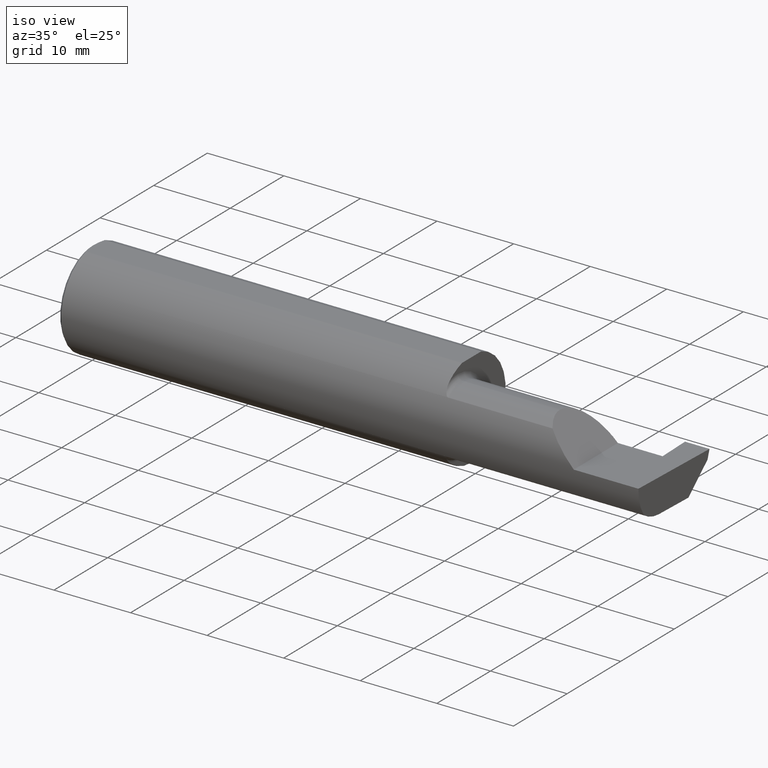
[diagram: clean part render]
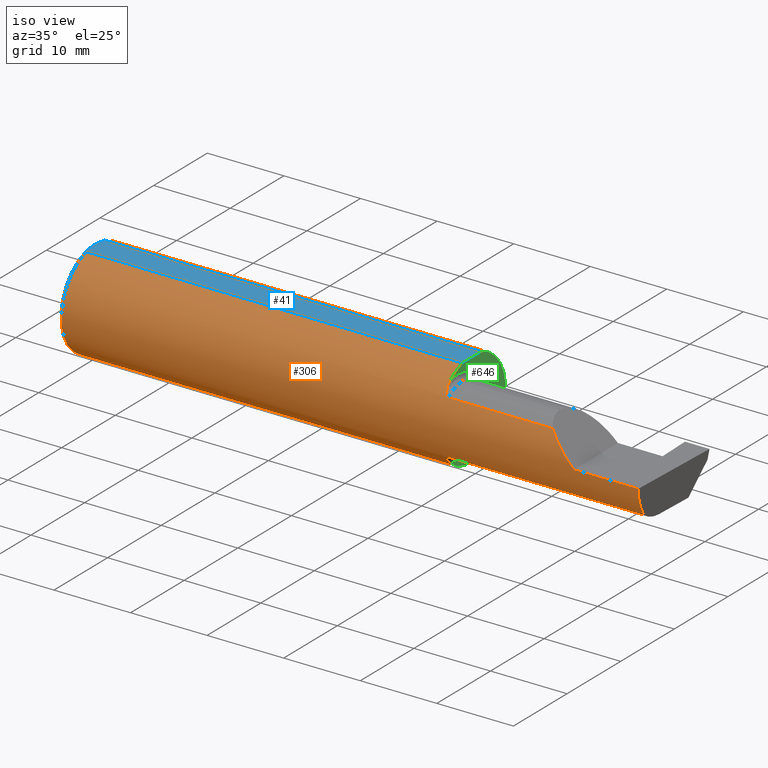
[diagram: same view with three faces highlighted in distinct colors, each labeled with its STEP entity id]
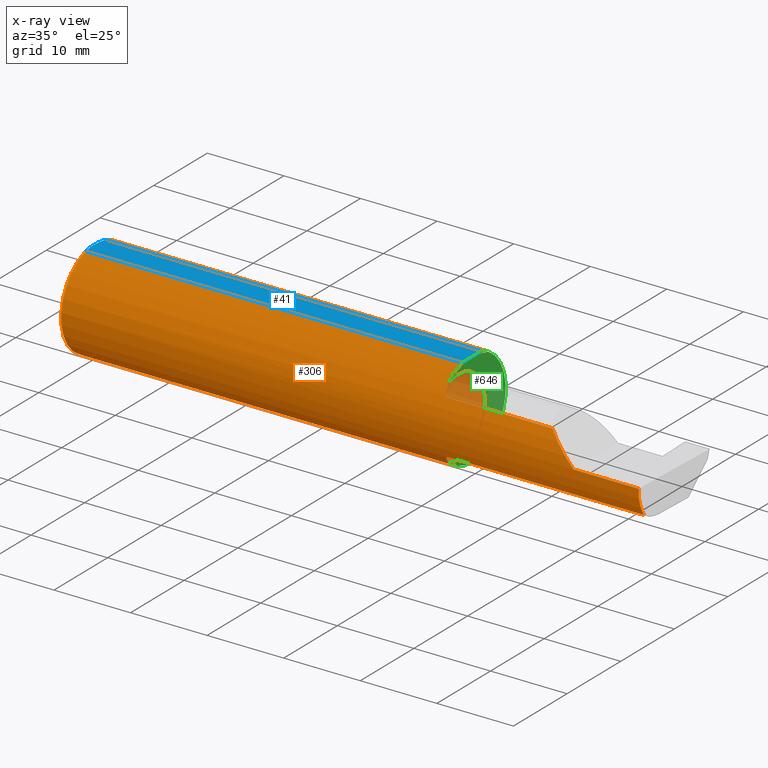
[diagram: x-ray of the same camera — body ghosted, the three highlighted faces saturated]
A machine part, iso view with three faces highlighted in distinct colors.
The next image is the same camera in x-ray (body ghosted, the three faces saturated) — at least one of them is partly hidden behind the body in this view.
Their STEP definitions:

[orange] entity #306 — the highlighted cylindrical surface (partial cylindrical patch) has radius 6.3462 mm, axis along (-1, -0, -0).
#6 = VECTOR ( 'NONE', #75, 39.37007874015748854 ) ;
#7 = EDGE_CURVE ( 'NONE', #76, #108, #496, .T. ) ;
#10 = CARTESIAN_POINT ( 'NONE',  ( 1.951849548162864156, -0.1805300287242674051, 0.1728462070311780896 ) ) ;
#13 = CARTESIAN_POINT ( 'NONE',  ( 2.980479240051444378, -0.2080850024789291652, -0.1382955322609665250 ) ) ;
#23 = FACE_OUTER_BOUND ( 'NONE', #72, .T. ) ;
#28 = EDGE_CURVE ( 'NONE', #205, #546, #428, .T. ) ;
#32 = AXIS2_PLACEMENT_3D ( 'NONE', #557, #299, #243 ) ;
#45 = ORIENTED_EDGE ( 'NONE', *, *, #322, .F. ) ;
#50 = CARTESIAN_POINT ( 'NONE',  ( 1.975000000000000089, -0.2080850024789292485, 0.1382955322609664972 ) ) ;
#51 = DIRECTION ( 'NONE',  ( 0.000000000000000000, 0.000000000000000000, 1.000000000000000000 ) ) ;
#62 = CARTESIAN_POINT ( 'NONE',  ( 1.950367168219774294, -0.1713400252854603845, 0.1819601557798505576 ) ) ;
#72 = EDGE_LOOP ( 'NONE', ( #292, #133, #174, #98, #192, #606, #569, #736, #45, #461, #586, #642, #478, #411 ) ) ;
#73 = CARTESIAN_POINT ( 'NONE',  ( 2.424500000000000099, -0.2080850024789291652, -0.1382955322609665250 ) ) ;
#75 = DIRECTION ( 'NONE',  ( 0.02616100201822768243, -0.0009135623211515312911, 0.9996573249755575929 ) ) ;
#76 = VERTEX_POINT ( 'NONE', #310 ) ;
#78 =( BOUNDED_CURVE ( )  B_SPLINE_CURVE ( 3, ( #267, #735, #449, #686 ),
 .UNSPECIFIED., .F., .T. ) 
 B_SPLINE_CURVE_WITH_KNOTS ( ( 4, 4 ),
 ( 4.712388980384689674, 5.298966915116346321 ),
 .UNSPECIFIED. ) 
 CURVE ( )  GEOMETRIC_REPRESENTATION_ITEM ( )  RATIONAL_B_SPLINE_CURVE ( ( 1.000000000000000000, 0.9715321379117538569, 0.9715321379117538569, 1.000000000000000000 ) ) 
 REPRESENTATION_ITEM ( '' )  );
#79 = CARTESIAN_POINT ( 'NONE',  ( 1.964302603425052585, -0.2041009206016214661, -0.1441313430770040371 ) ) ;
#86 = CARTESIAN_POINT ( 'NONE',  ( 1.950000000000000400, -0.1716188362992556171, -0.1820560320165480195 ) ) ;
#87 = AXIS2_PLACEMENT_3D ( 'NONE', #350, #653, #278 ) ;
#98 = ORIENTED_EDGE ( 'NONE', *, *, #547, .F. ) ;
#105 = CARTESIAN_POINT ( 'NONE',  ( 2.982644377562602589, -0.2498499999999999610, 1.813681607540488003E-17 ) ) ;
#108 = VERTEX_POINT ( 'NONE', #176 ) ;
#120 = EDGE_CURVE ( 'NONE', #533, #205, #574, .T. ) ;
#122 = CARTESIAN_POINT ( 'NONE',  ( 1.950000000000000178, 0.000000000000000000, 0.000000000000000000 ) ) ;
#124 = VERTEX_POINT ( 'NONE', #180 ) ;
#126 = VECTOR ( 'NONE', #576, 39.37007874015748143 ) ;
#127 = CARTESIAN_POINT ( 'NONE',  ( 1.950000000000000178, -0.1616050818046604332, 0.1905487340154980169 ) ) ;
#131 = CARTESIAN_POINT ( 'NONE',  ( 1.973329956043143651, -0.2080850024798591991, 0.1382955322595675607 ) ) ;
#133 = ORIENTED_EDGE ( 'NONE', *, *, #697, .T. ) ;
#134 = EDGE_CURVE ( 'NONE', #698, #445, #672, .T. ) ;
#140 = LINE ( 'NONE', #755, #433 ) ;
#146 = DIRECTION ( 'NONE',  ( -1.000000000000000000, -0.000000000000000000, -0.000000000000000000 ) ) ;
#172 = CARTESIAN_POINT ( 'NONE',  ( 2.424500000000000099, -0.2080850024789291652, 0.1382955322609665250 ) ) ;
#174 = ORIENTED_EDGE ( 'NONE', *, *, #242, .T. ) ;
#176 = CARTESIAN_POINT ( 'NONE',  ( 1.950000000000000178, 0.06997856814768360634, 0.2398500000000000076 ) ) ;
#180 = CARTESIAN_POINT ( 'NONE',  ( 0.01499999999999998036, 0.06997856814768359246, 0.2398500000000000076 ) ) ;
#182 = VECTOR ( 'NONE', #663, 39.37007874015748143 ) ;
#191 = CARTESIAN_POINT ( 'NONE',  ( 0.01499999999999999944, -0.06997856814768359246, 0.2398500000000000076 ) ) ;
#192 = ORIENTED_EDGE ( 'NONE', *, *, #625, .F. ) ;
#195 = DIRECTION ( 'NONE',  ( 1.000000000000000000, 0.000000000000000000, 0.000000000000000000 ) ) ;
#205 = VERTEX_POINT ( 'NONE', #191 ) ;
#215 = DIRECTION ( 'NONE',  ( 0.000000000000000000, 0.000000000000000000, 1.000000000000000000 ) ) ;
#219 = CYLINDRICAL_SURFACE ( 'NONE', #87, 0.2498499999999999888 ) ;
#222 = CIRCLE ( 'NONE', #304, 0.2498499999999999888 ) ;
#225 = CARTESIAN_POINT ( 'NONE',  ( 1.967611663768900288, -0.2061921161193830399, -0.1411075319999376687 ) ) ;
#226 = VERTEX_POINT ( 'NONE', #327 ) ;
#242 = EDGE_CURVE ( 'NONE', #590, #321, #78, .T. ) ;
#243 = DIRECTION ( 'NONE',  ( 0.000000000000000000, 0.000000000000000000, -1.000000000000000000 ) ) ;
#248 =( BOUNDED_CURVE ( )  B_SPLINE_CURVE ( 3, ( #13, #708, #463, #767 ),
 .UNSPECIFIED., .F., .T. ) 
 B_SPLINE_CURVE_WITH_KNOTS ( ( 4, 4 ),
 ( 0.05713034791898994463, 0.6418805321922130824 ),
 .UNSPECIFIED. ) 
 CURVE ( )  GEOMETRIC_REPRESENTATION_ITEM ( )  RATIONAL_B_SPLINE_CURVE ( ( 1.000000000000000000, 0.9717080070095575062, 0.9717080070095575062, 1.000000000000000000 ) ) 
 REPRESENTATION_ITEM ( '' )  );
#252 = CARTESIAN_POINT ( 'NONE',  ( 1.964343523383979884, -0.2041337200786084161, 0.1440846171672512943 ) ) ;
#256 = LINE ( 'NONE', #73, #126 ) ;
#264 = VECTOR ( 'NONE', #296, 39.37007874015748143 ) ;
#267 = CARTESIAN_POINT ( 'NONE',  ( 2.650000000000000355, -0.2498499999999999610, 4.286263797015727350E-17 ) ) ;
#273 = CARTESIAN_POINT ( 'NONE',  ( 1.973318040126430084, -0.2080850024789291097, -0.1382955322609666915 ) ) ;
#278 = DIRECTION ( 'NONE',  ( 0.000000000000000000, 0.000000000000000000, 1.000000000000000000 ) ) ;
#283 = DIRECTION ( 'NONE',  ( -1.000000000000000000, -0.000000000000000000, -0.000000000000000000 ) ) ;
#286 = EDGE_CURVE ( 'NONE', #712, #698, #248, .T. ) ;
#289 = EDGE_CURVE ( 'NONE', #439, #76, #493, .T. ) ;
#292 = ORIENTED_EDGE ( 'NONE', *, *, #134, .T. ) ;
#296 = DIRECTION ( 'NONE',  ( 1.000000000000000000, 0.000000000000000000, 0.000000000000000000 ) ) ;
#299 = DIRECTION ( 'NONE',  ( 1.000000000000000000, 0.000000000000000000, 0.000000000000000000 ) ) ;
#303 = CIRCLE ( 'NONE', #738, 0.2498499999999999888 ) ;
#304 = AXIS2_PLACEMENT_3D ( 'NONE', #122, #195, #507 ) ;
#306 = ADVANCED_FACE ( 'NONE', ( #23 ), #219, .T. ) ;
#310 = CARTESIAN_POINT ( 'NONE',  ( 1.950000000000000178, -0.1616050818046604332, -0.1905487340154980169 ) ) ;
#321 = VERTEX_POINT ( 'NONE', #750 ) ;
#322 = EDGE_CURVE ( 'NONE', #124, #533, #303, .T. ) ;
#326 = CARTESIAN_POINT ( 'NONE',  ( 1.975000000000000089, -0.2080850024789292485, 0.1382955322609664972 ) ) ;
#327 = CARTESIAN_POINT ( 'NONE',  ( 1.950000000000000178, -0.1616050818046604332, 0.1905487340154980169 ) ) ;
#348 = EDGE_CURVE ( 'NONE', #108, #124, #140, .T. ) ;
#350 = CARTESIAN_POINT ( 'NONE',  ( 0.000000000000000000, 0.000000000000000000, 0.000000000000000000 ) ) ;
#352 = LINE ( 'NONE', #695, #471 ) ;
#360 = CARTESIAN_POINT ( 'NONE',  ( 1.975000000000000089, -0.2080850024789291375, -0.1382955322609665805 ) ) ;
#374 = CARTESIAN_POINT ( 'NONE',  ( 1.952968662030529323, -0.1849684355203378705, 0.1680843977756267815 ) ) ;
#383 = CARTESIAN_POINT ( 'NONE',  ( 2.650000000000000355, -0.2498499999999999610, 4.286263797015727350E-17 ) ) ;
#397 = CARTESIAN_POINT ( 'NONE',  ( 2.980479240051444378, -0.2080850024789291652, -0.1382955322609665250 ) ) ;
#400 = CARTESIAN_POINT ( 'NONE',  ( 2.982632426700501327, -0.2498495826666993214, -0.0004566631977791965049 ) ) ;
#401 = CARTESIAN_POINT ( 'NONE',  ( 1.958176740666625726, -0.1972027065478073327, -0.1535263573771913914 ) ) ;
#407 = CARTESIAN_POINT ( 'NONE',  ( 1.950000000000000178, -0.1616050818046604332, -0.1905487340154980169 ) ) ;
#410 = CARTESIAN_POINT ( 'NONE',  ( 1.971700027347579098, -0.2077785947292768443, -0.1387580622202825575 ) ) ;
#411 = ORIENTED_EDGE ( 'NONE', *, *, #286, .T. ) ;
#428 = LINE ( 'NONE', #714, #264 ) ;
#433 = VECTOR ( 'NONE', #700, 39.37007874015748143 ) ;
#439 = VERTEX_POINT ( 'NONE', #360 ) ;
#445 = VERTEX_POINT ( 'NONE', #105 ) ;
#449 = CARTESIAN_POINT ( 'NONE',  ( 2.552984868485333347, -0.2355204011147992438, 0.09701513151466735485 ) ) ;
#461 = ORIENTED_EDGE ( 'NONE', *, *, #348, .F. ) ;
#463 = CARTESIAN_POINT ( 'NONE',  ( 2.981341028891337785, -0.2497592792593336664, -0.04986346618389509572 ) ) ;
#471 = VECTOR ( 'NONE', #146, 39.37007874015748143 ) ;
#478 = ORIENTED_EDGE ( 'NONE', *, *, #657, .F. ) ;
#483 = CARTESIAN_POINT ( 'NONE',  ( 1.950000000000000178, -0.06997856814768374512, 0.2398500000000000076 ) ) ;
#493 = B_SPLINE_CURVE_WITH_KNOTS ( 'NONE', 3,
 ( #649, #273, #410, #696, #225, #79, #644, #401, #535, #522, #86, #407 ),
 .UNSPECIFIED., .F., .F.,
 ( 4, 2, 2, 2, 2, 4 ),
 ( 1.964491429041408350E-07, 0.0001260981470478295585, 0.0002519998449527549372, 0.0005038032407626189760, 0.001007410032382346837, 0.002014623615621808413 ),
 .UNSPECIFIED. ) ;
#496 = CIRCLE ( 'NONE', #32, 0.2498499999999999888 ) ;
#500 = CARTESIAN_POINT ( 'NONE',  ( 1.971718393013769388, -0.2077830475237242291, 0.1387513848711937614 ) ) ;
#507 = DIRECTION ( 'NONE',  ( 0.000000000000000000, 0.000000000000000000, -1.000000000000000000 ) ) ;
#522 = CARTESIAN_POINT ( 'NONE',  ( 1.951385488563270432, -0.1808287530430325862, -0.1728790649396287349 ) ) ;
#528 = CARTESIAN_POINT ( 'NONE',  ( 0.01499999999999999944, 0.000000000000000000, 0.000000000000000000 ) ) ;
#529 = VERTEX_POINT ( 'NONE', #50 ) ;
#533 = VERTEX_POINT ( 'NONE', #660 ) ;
#535 = CARTESIAN_POINT ( 'NONE',  ( 1.956147634408387459, -0.1932733126899460752, -0.1584637047788197417 ) ) ;
#546 = VERTEX_POINT ( 'NONE', #483 ) ;
#547 = EDGE_CURVE ( 'NONE', #529, #321, #719, .T. ) ;
#557 = CARTESIAN_POINT ( 'NONE',  ( 1.950000000000000178, 0.000000000000000000, 0.000000000000000000 ) ) ;
#567 = CARTESIAN_POINT ( 'NONE',  ( 1.950000000000000844, -0.1665641037263009827, 0.1863429692936361959 ) ) ;
#569 = ORIENTED_EDGE ( 'NONE', *, *, #28, .F. ) ;
#570 = EDGE_CURVE ( 'NONE', #546, #226, #222, .T. ) ;
#574 = CIRCLE ( 'NONE', #703, 0.2498499999999999888 ) ;
#576 = DIRECTION ( 'NONE',  ( -1.000000000000000000, -0.000000000000000000, -0.000000000000000000 ) ) ;
#577 = CARTESIAN_POINT ( 'NONE',  ( 2.977412177158956563, -0.2496672875357696664, -0.1999314649951114686 ) ) ;
#586 = ORIENTED_EDGE ( 'NONE', *, *, #7, .F. ) ;
#590 = VERTEX_POINT ( 'NONE', #383 ) ;
#606 = ORIENTED_EDGE ( 'NONE', *, *, #570, .F. ) ;
#617 = CARTESIAN_POINT ( 'NONE',  ( 1.962616400345755574, -0.2024684335577102978, 0.1464246884265637261 ) ) ;
#625 = EDGE_CURVE ( 'NONE', #226, #529, #797, .T. ) ;
#642 = ORIENTED_EDGE ( 'NONE', *, *, #289, .F. ) ;
#644 = CARTESIAN_POINT ( 'NONE',  ( 1.962579853086619197, -0.2024300470081735470, -0.1464774911482684405 ) ) ;
#649 = CARTESIAN_POINT ( 'NONE',  ( 1.975000000000000089, -0.2080850024789291375, -0.1382955322609665805 ) ) ;
#653 = DIRECTION ( 'NONE',  ( -1.000000000000000000, -0.000000000000000000, -0.000000000000000000 ) ) ;
#657 = EDGE_CURVE ( 'NONE', #712, #439, #256, .T. ) ;
#660 = CARTESIAN_POINT ( 'NONE',  ( 0.01499999999999999944, 0.000000000000000000, -0.2498499999999999888 ) ) ;
#663 = DIRECTION ( 'NONE',  ( 1.000000000000000000, 0.000000000000000000, 0.000000000000000000 ) ) ;
#666 = DIRECTION ( 'NONE',  ( -1.000000000000000000, -0.000000000000000000, -0.000000000000000000 ) ) ;
#672 = LINE ( 'NONE', #577, #6 ) ;
#673 = CARTESIAN_POINT ( 'NONE',  ( 1.958182335268384255, -0.1972192205116130859, 0.1535061413537208985 ) ) ;
#683 = CARTESIAN_POINT ( 'NONE',  ( 1.967647060162629025, -0.2062109266231182680, 0.1410799729252290857 ) ) ;
#686 = CARTESIAN_POINT ( 'NONE',  ( 2.511704467739034552, -0.2080850024789292485, 0.1382955322609664139 ) ) ;
#695 = CARTESIAN_POINT ( 'NONE',  ( 4.499279347985559139E-32, -0.2498499999999999610, 3.673940397442053459E-16 ) ) ;
#696 = CARTESIAN_POINT ( 'NONE',  ( 1.968863362722770738, -0.2068301641248770639, -0.1401678546132360259 ) ) ;
#697 = EDGE_CURVE ( 'NONE', #445, #590, #352, .T. ) ;
#698 = VERTEX_POINT ( 'NONE', #400 ) ;
#700 = DIRECTION ( 'NONE',  ( -1.000000000000000000, -0.000000000000000000, -0.000000000000000000 ) ) ;
#703 = AXIS2_PLACEMENT_3D ( 'NONE', #723, #666, #51 ) ;
#708 = CARTESIAN_POINT ( 'NONE',  ( 2.980602402804240381, -0.2354324170447263109, -0.09714751587401684874 ) ) ;
#712 = VERTEX_POINT ( 'NONE', #397 ) ;
#714 = CARTESIAN_POINT ( 'NONE',  ( 0.000000000000000000, -0.06997856814768359246, 0.2398500000000000076 ) ) ;
#719 = LINE ( 'NONE', #172, #182 ) ;
#723 = CARTESIAN_POINT ( 'NONE',  ( 0.01499999999999999944, 0.000000000000000000, 0.000000000000000000 ) ) ;
#731 = CARTESIAN_POINT ( 'NONE',  ( 1.956159563508734323, -0.1933019864360849549, 0.1584298865564831016 ) ) ;
#735 = CARTESIAN_POINT ( 'NONE',  ( 2.600434159100403875, -0.2498499999999999055, 0.04956584089959691769 ) ) ;
#736 = ORIENTED_EDGE ( 'NONE', *, *, #120, .F. ) ;
#737 = CARTESIAN_POINT ( 'NONE',  ( 1.968876997637614812, -0.2068363917296600352, 0.1401586554522230577 ) ) ;
#738 = AXIS2_PLACEMENT_3D ( 'NONE', #528, #283, #215 ) ;
#750 = CARTESIAN_POINT ( 'NONE',  ( 2.511704467739034552, -0.2080850024789292485, 0.1382955322609664139 ) ) ;
#755 = CARTESIAN_POINT ( 'NONE',  ( 0.000000000000000000, 0.06997856814768359246, 0.2398500000000000076 ) ) ;
#767 = CARTESIAN_POINT ( 'NONE',  ( 2.982632426700501327, -0.2498495826666993214, -0.0004566631977791965049 ) ) ;
#797 = B_SPLINE_CURVE_WITH_KNOTS ( 'NONE', 3,
 ( #127, #567, #62, #10, #374, #731, #673, #617, #252, #683, #737, #500, #131, #326 ),
 .UNSPECIFIED., .F., .F.,
 ( 4, 2, 2, 2, 2, 2, 4 ),
 ( 0.0003834465838148164380, 0.0008781406165086620653, 0.001372834649202507584, 0.001867528681896353428, 0.002114875698243280037, 0.002238549206416750280, 0.002362222714590220523 ),
 .UNSPECIFIED. ) ;

[blue] entity #41 — the highlighted planar face has unit normal (0, -0, 1).
#28 = EDGE_CURVE ( 'NONE', #205, #546, #428, .T. ) ;
#41 = ADVANCED_FACE ( 'NONE', ( #495 ), #774, .T. ) ;
#46 = EDGE_CURVE ( 'NONE', #284, #205, #159, .T. ) ;
#61 = AXIS2_PLACEMENT_3D ( 'NONE', #165, #111, #420 ) ;
#108 = VERTEX_POINT ( 'NONE', #176 ) ;
#111 = DIRECTION ( 'NONE',  ( 0.000000000000000000, -0.000000000000000000, 1.000000000000000000 ) ) ;
#124 = VERTEX_POINT ( 'NONE', #180 ) ;
#140 = LINE ( 'NONE', #755, #433 ) ;
#147 = CARTESIAN_POINT ( 'NONE',  ( 0.004999999999999471013, 5.665694022114171174E-17, 0.2398500000000000076 ) ) ;
#159 = B_SPLINE_CURVE_WITH_KNOTS ( 'NONE', 3,
 ( #543, #661, #730, #238, #613, #184 ),
 .UNSPECIFIED., .F., .F.,
 ( 4, 2, 4 ),
 ( 0.007845223120669342701, 0.008734561288375082555, 0.009623899456080820675 ),
 .UNSPECIFIED. ) ;
#164 = CARTESIAN_POINT ( 'NONE',  ( 0.004999999999999748569, 0.01185123536186986556, 0.2398500000000000354 ) ) ;
#165 = CARTESIAN_POINT ( 'NONE',  ( 3.000000000000000444, -0.2498499999999999888, 0.2398500000000000076 ) ) ;
#168 = ORIENTED_EDGE ( 'NONE', *, *, #651, .T. ) ;
#176 = CARTESIAN_POINT ( 'NONE',  ( 1.950000000000000178, 0.06997856814768360634, 0.2398500000000000076 ) ) ;
#180 = CARTESIAN_POINT ( 'NONE',  ( 0.01499999999999998036, 0.06997856814768359246, 0.2398500000000000076 ) ) ;
#184 = CARTESIAN_POINT ( 'NONE',  ( 0.01499999999999999944, -0.06997856814768359246, 0.2398500000000000076 ) ) ;
#191 = CARTESIAN_POINT ( 'NONE',  ( 0.01499999999999999944, -0.06997856814768359246, 0.2398500000000000076 ) ) ;
#205 = VERTEX_POINT ( 'NONE', #191 ) ;
#238 = CARTESIAN_POINT ( 'NONE',  ( 0.009274236576542580976, -0.04692405468904852633, 0.2398500000000000076 ) ) ;
#260 = CARTESIAN_POINT ( 'NONE',  ( 1.950000000000000178, -0.2498499999999999888, 0.2398500000000000076 ) ) ;
#264 = VECTOR ( 'NONE', #296, 39.37007874015748143 ) ;
#284 = VERTEX_POINT ( 'NONE', #147 ) ;
#295 = CARTESIAN_POINT ( 'NONE',  ( 0.01499999999999998036, 0.06997856814768359246, 0.2398500000000000076 ) ) ;
#296 = DIRECTION ( 'NONE',  ( 1.000000000000000000, 0.000000000000000000, 0.000000000000000000 ) ) ;
#332 = LINE ( 'NONE', #260, #434 ) ;
#348 = EDGE_CURVE ( 'NONE', #108, #124, #140, .T. ) ;
#372 = CARTESIAN_POINT ( 'NONE',  ( 0.004999999999999471013, 5.665694022114171174E-17, 0.2398500000000000076 ) ) ;
#416 = EDGE_LOOP ( 'NONE', ( #675, #168, #476, #541, #756 ) ) ;
#420 = DIRECTION ( 'NONE',  ( 1.000000000000000000, 0.000000000000000000, -0.000000000000000000 ) ) ;
#428 = LINE ( 'NONE', #714, #264 ) ;
#433 = VECTOR ( 'NONE', #700, 39.37007874015748143 ) ;
#434 = VECTOR ( 'NONE', #452, 39.37007874015748143 ) ;
#452 = DIRECTION ( 'NONE',  ( -0.000000000000000000, 1.000000000000000000, 0.000000000000000000 ) ) ;
#464 = B_SPLINE_CURVE_WITH_KNOTS ( 'NONE', 3,
 ( #295, #670, #542, #600, #164, #372 ),
 .UNSPECIFIED., .F., .F.,
 ( 4, 2, 4 ),
 ( 0.006064768674679249863, 0.006954995897674296282, 0.007845223120669342701 ),
 .UNSPECIFIED. ) ;
#476 = ORIENTED_EDGE ( 'NONE', *, *, #348, .T. ) ;
#483 = CARTESIAN_POINT ( 'NONE',  ( 1.950000000000000178, -0.06997856814768374512, 0.2398500000000000076 ) ) ;
#495 = FACE_OUTER_BOUND ( 'NONE', #416, .T. ) ;
#508 = EDGE_CURVE ( 'NONE', #124, #284, #464, .T. ) ;
#541 = ORIENTED_EDGE ( 'NONE', *, *, #508, .T. ) ;
#542 = CARTESIAN_POINT ( 'NONE',  ( 0.009312860630924745670, 0.04712480857212029278, 0.2398500000000000354 ) ) ;
#543 = CARTESIAN_POINT ( 'NONE',  ( 0.004999999999999471013, 5.665694022114171174E-17, 0.2398500000000000076 ) ) ;
#546 = VERTEX_POINT ( 'NONE', #483 ) ;
#600 = CARTESIAN_POINT ( 'NONE',  ( 0.005899890343961325216, 0.02378560009989246285, 0.2398500000000000076 ) ) ;
#613 = CARTESIAN_POINT ( 'NONE',  ( 0.01180609504125290990, -0.05857511741890331081, 0.2398500000000000354 ) ) ;
#651 = EDGE_CURVE ( 'NONE', #546, #108, #332, .T. ) ;
#661 = CARTESIAN_POINT ( 'NONE',  ( 0.004999999999999737293, -0.01183939972798748325, 0.2398500000000000631 ) ) ;
#670 = CARTESIAN_POINT ( 'NONE',  ( 0.01181966702888963446, 0.05862357455657472849, 0.2398500000000000631 ) ) ;
#675 = ORIENTED_EDGE ( 'NONE', *, *, #28, .T. ) ;
#700 = DIRECTION ( 'NONE',  ( -1.000000000000000000, -0.000000000000000000, -0.000000000000000000 ) ) ;
#714 = CARTESIAN_POINT ( 'NONE',  ( 0.000000000000000000, -0.06997856814768359246, 0.2398500000000000076 ) ) ;
#730 = CARTESIAN_POINT ( 'NONE',  ( 0.005880636388018714231, -0.02358947477502552903, 0.2398500000000000354 ) ) ;
#755 = CARTESIAN_POINT ( 'NONE',  ( 0.000000000000000000, 0.06997856814768359246, 0.2398500000000000076 ) ) ;
#756 = ORIENTED_EDGE ( 'NONE', *, *, #46, .T. ) ;
#774 = PLANE ( 'NONE',  #61 ) ;

[green] entity #646 — the highlighted planar face has unit normal (1, 0, 0).
#7 = EDGE_CURVE ( 'NONE', #76, #108, #496, .T. ) ;
#9 = ORIENTED_EDGE ( 'NONE', *, *, #570, .T. ) ;
#32 = AXIS2_PLACEMENT_3D ( 'NONE', #557, #299, #243 ) ;
#47 = AXIS2_PLACEMENT_3D ( 'NONE', #55, #438, #664 ) ;
#55 = CARTESIAN_POINT ( 'NONE',  ( 1.950000000000000178, -0.1008499999999999674, 0.000000000000000000 ) ) ;
#63 = AXIS2_PLACEMENT_3D ( 'NONE', #676, #513, #743 ) ;
#66 = FACE_OUTER_BOUND ( 'NONE', #202, .T. ) ;
#76 = VERTEX_POINT ( 'NONE', #310 ) ;
#80 = EDGE_CURVE ( 'NONE', #226, #88, #446, .T. ) ;
#82 = DIRECTION ( 'NONE',  ( -1.000000000000000000, -0.000000000000000000, -0.000000000000000000 ) ) ;
#88 = VERTEX_POINT ( 'NONE', #373 ) ;
#101 = DIRECTION ( 'NONE',  ( -1.000000000000000000, -0.000000000000000000, -0.000000000000000000 ) ) ;
#108 = VERTEX_POINT ( 'NONE', #176 ) ;
#122 = CARTESIAN_POINT ( 'NONE',  ( 1.950000000000000178, 0.000000000000000000, 0.000000000000000000 ) ) ;
#141 = AXIS2_PLACEMENT_3D ( 'NONE', #143, #82, #206 ) ;
#143 = CARTESIAN_POINT ( 'NONE',  ( 1.950000000000000178, -0.1008499999999999674, 0.000000000000000000 ) ) ;
#176 = CARTESIAN_POINT ( 'NONE',  ( 1.950000000000000178, 0.06997856814768360634, 0.2398500000000000076 ) ) ;
#181 = ORIENTED_EDGE ( 'NONE', *, *, #651, .F. ) ;
#195 = DIRECTION ( 'NONE',  ( 1.000000000000000000, 0.000000000000000000, 0.000000000000000000 ) ) ;
#202 = EDGE_LOOP ( 'NONE', ( #523, #181, #9, #357, #650, #235 ) ) ;
#206 = DIRECTION ( 'NONE',  ( 0.000000000000000000, 0.000000000000000000, 1.000000000000000000 ) ) ;
#222 = CIRCLE ( 'NONE', #304, 0.2498499999999999888 ) ;
#226 = VERTEX_POINT ( 'NONE', #327 ) ;
#235 = ORIENTED_EDGE ( 'NONE', *, *, #431, .T. ) ;
#241 = DIRECTION ( 'NONE',  ( 0.000000000000000000, 0.000000000000000000, 1.000000000000000000 ) ) ;
#243 = DIRECTION ( 'NONE',  ( 0.000000000000000000, 0.000000000000000000, -1.000000000000000000 ) ) ;
#260 = CARTESIAN_POINT ( 'NONE',  ( 1.950000000000000178, -0.2498499999999999888, 0.2398500000000000076 ) ) ;
#265 = CIRCLE ( 'NONE', #539, 0.1999999999999999833 ) ;
#299 = DIRECTION ( 'NONE',  ( 1.000000000000000000, 0.000000000000000000, 0.000000000000000000 ) ) ;
#304 = AXIS2_PLACEMENT_3D ( 'NONE', #122, #195, #507 ) ;
#310 = CARTESIAN_POINT ( 'NONE',  ( 1.950000000000000178, -0.1616050818046604332, -0.1905487340154980169 ) ) ;
#327 = CARTESIAN_POINT ( 'NONE',  ( 1.950000000000000178, -0.1616050818046604332, 0.1905487340154980169 ) ) ;
#332 = LINE ( 'NONE', #260, #434 ) ;
#347 = VERTEX_POINT ( 'NONE', #475 ) ;
#357 = ORIENTED_EDGE ( 'NONE', *, *, #80, .T. ) ;
#373 = CARTESIAN_POINT ( 'NONE',  ( 1.950000000000000178, -0.1008499999999999674, 0.1999999999999999833 ) ) ;
#431 = EDGE_CURVE ( 'NONE', #347, #76, #265, .T. ) ;
#434 = VECTOR ( 'NONE', #452, 39.37007874015748143 ) ;
#438 = DIRECTION ( 'NONE',  ( -1.000000000000000000, -0.000000000000000000, -0.000000000000000000 ) ) ;
#446 = CIRCLE ( 'NONE', #47, 0.1999999999999999833 ) ;
#452 = DIRECTION ( 'NONE',  ( -0.000000000000000000, 1.000000000000000000, 0.000000000000000000 ) ) ;
#475 = CARTESIAN_POINT ( 'NONE',  ( 1.950000000000000178, -0.1008499999999999536, -0.1999999999999999833 ) ) ;
#483 = CARTESIAN_POINT ( 'NONE',  ( 1.950000000000000178, -0.06997856814768374512, 0.2398500000000000076 ) ) ;
#494 = PLANE ( 'NONE',  #63 ) ;
#496 = CIRCLE ( 'NONE', #32, 0.2498499999999999888 ) ;
#507 = DIRECTION ( 'NONE',  ( 0.000000000000000000, 0.000000000000000000, -1.000000000000000000 ) ) ;
#513 = DIRECTION ( 'NONE',  ( 1.000000000000000000, 0.000000000000000000, 0.000000000000000000 ) ) ;
#523 = ORIENTED_EDGE ( 'NONE', *, *, #7, .T. ) ;
#539 = AXIS2_PLACEMENT_3D ( 'NONE', #770, #101, #241 ) ;
#546 = VERTEX_POINT ( 'NONE', #483 ) ;
#551 = CIRCLE ( 'NONE', #141, 0.1999999999999999833 ) ;
#557 = CARTESIAN_POINT ( 'NONE',  ( 1.950000000000000178, 0.000000000000000000, 0.000000000000000000 ) ) ;
#570 = EDGE_CURVE ( 'NONE', #546, #226, #222, .T. ) ;
#646 = ADVANCED_FACE ( 'NONE', ( #66 ), #494, .T. ) ;
#650 = ORIENTED_EDGE ( 'NONE', *, *, #706, .T. ) ;
#651 = EDGE_CURVE ( 'NONE', #546, #108, #332, .T. ) ;
#664 = DIRECTION ( 'NONE',  ( 0.000000000000000000, 0.000000000000000000, 1.000000000000000000 ) ) ;
#676 = CARTESIAN_POINT ( 'NONE',  ( 1.950000000000000178, 0.2741499999999999493, 0.000000000000000000 ) ) ;
#706 = EDGE_CURVE ( 'NONE', #88, #347, #551, .T. ) ;
#743 = DIRECTION ( 'NONE',  ( 0.000000000000000000, 0.000000000000000000, -1.000000000000000000 ) ) ;
#770 = CARTESIAN_POINT ( 'NONE',  ( 1.950000000000000178, -0.1008499999999999674, 0.000000000000000000 ) ) ;